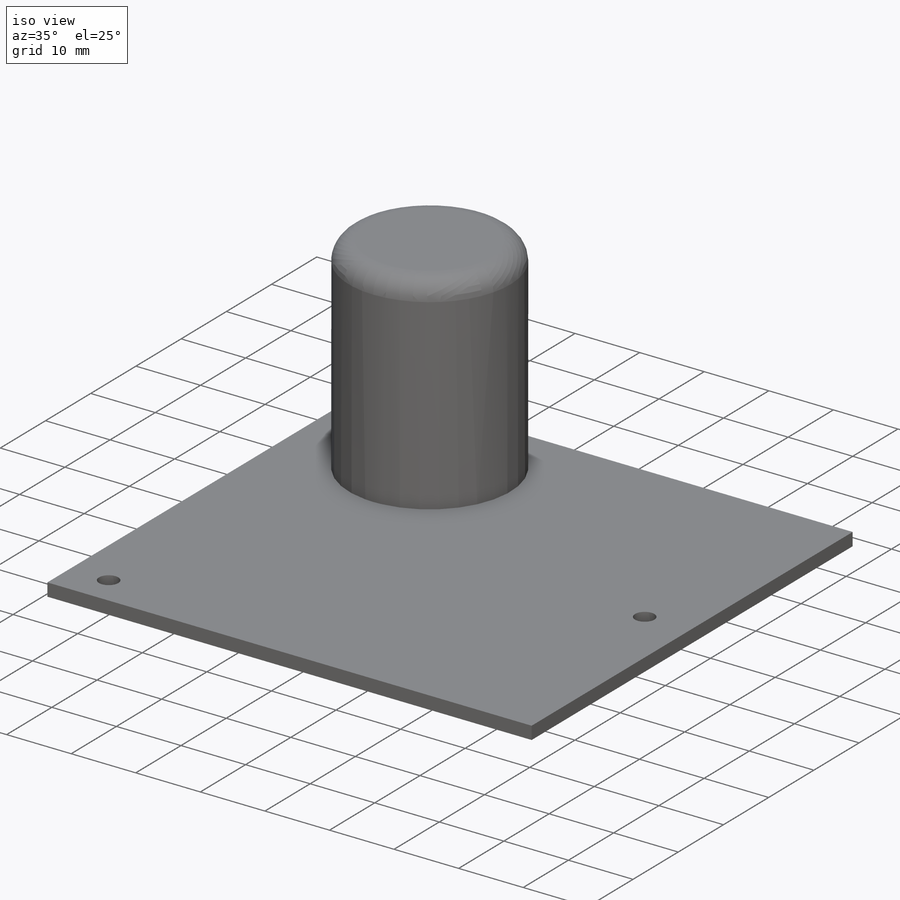
[diagram: iso view]
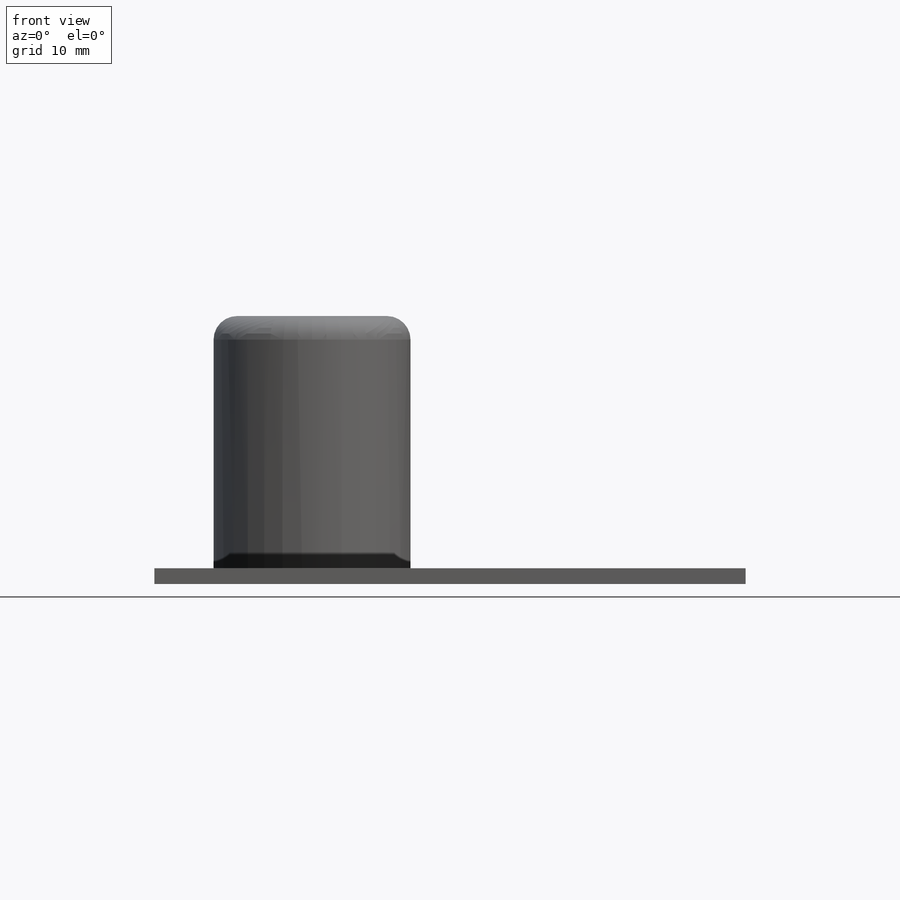
[diagram: front view]
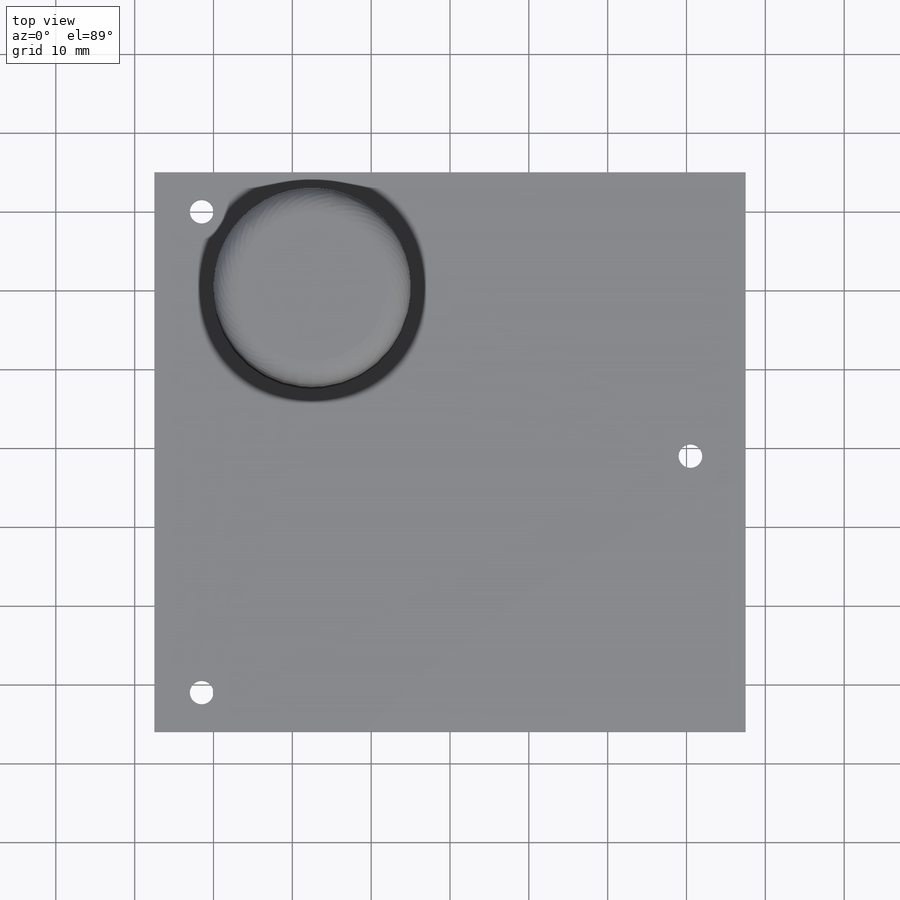
[diagram: top view]
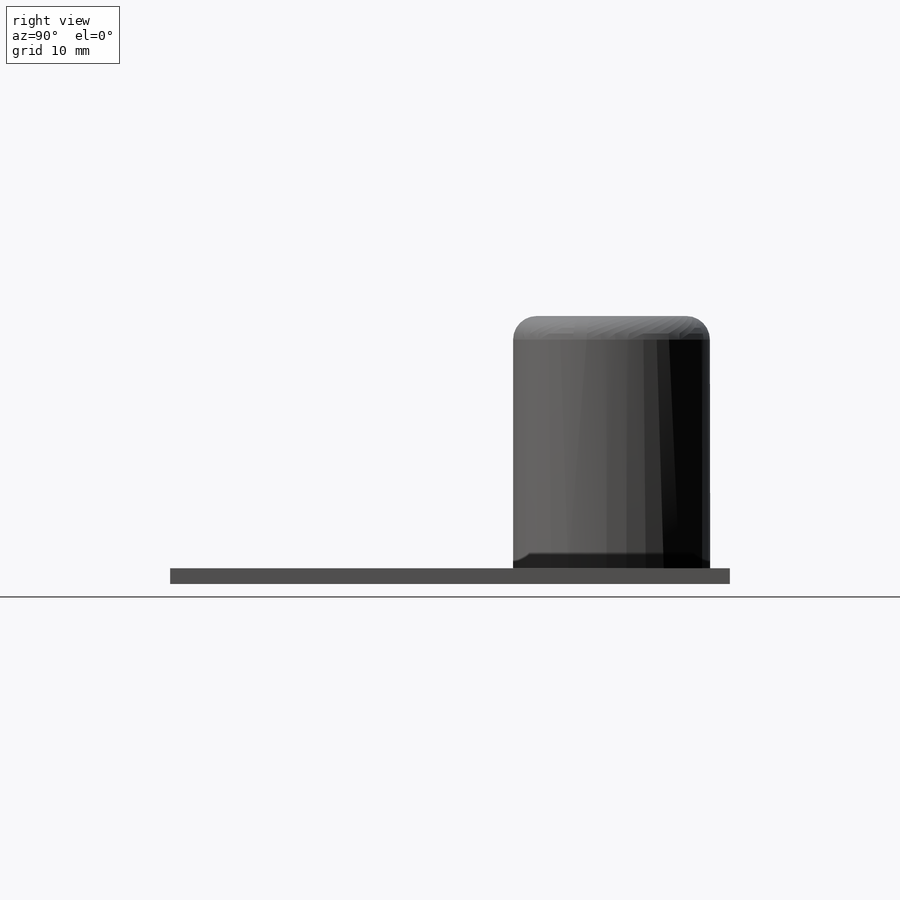
[diagram: right view]
SOLIDWORKS PART (.sldprt)
format: sldprt  version: not decoded by parser v0  size: 359,936 bytes
history: native  units: mm
features: plane x3, sketch x2, extrude x2, material x1, fillet x1 (+9 scaffold rows collapsed)
feature tree (18):
  scaffold x9  (default folders/planes/origin — collapsed)
  material  "Matériau <non spécifié>"
  plane  "Plan de face"
  plane  "Plan de dessus"
  plane  "Plan de droite"
  sketch  "Esquisse1"  dims[c1.D5=3.0mm c1.D6=3.0mm c1.D7=3.0mm c1.D8=3.0mm c1.D1=75.0mm c1.D2=71.0mm c1.D3=35.0mm c1.D4=37.5mm c1.D9=5.0mm c1.D10=6.0mm c1.D11=5.0mm c1.D12=6.0mm c1.D13=20.0mm c1.D14=~23.47551mm c2.D13=10.0mm c2.D14=10.0mm c2.D15=7.0mm c2.D16=35.0mm c2.D6=62.0mm c3.D6=~116.565051deg]
  extrude  "Boss.-Extru.1"  Depth=2mm
  sketch  "Esquisse3"  dims[D1=25.0mm D2=15.0mm D3=20.0mm]
  extrude  "Boss.-Extru.2"  Depth=32mm
  fillet  "Congé1"  Radius=3mm
decode coverage: 5 of 5 modeling features carry decoded parameters
note: ~ marks probable driven/reference dimensions
note: suppression state not decoded; provenance and decode notes live in map.json
